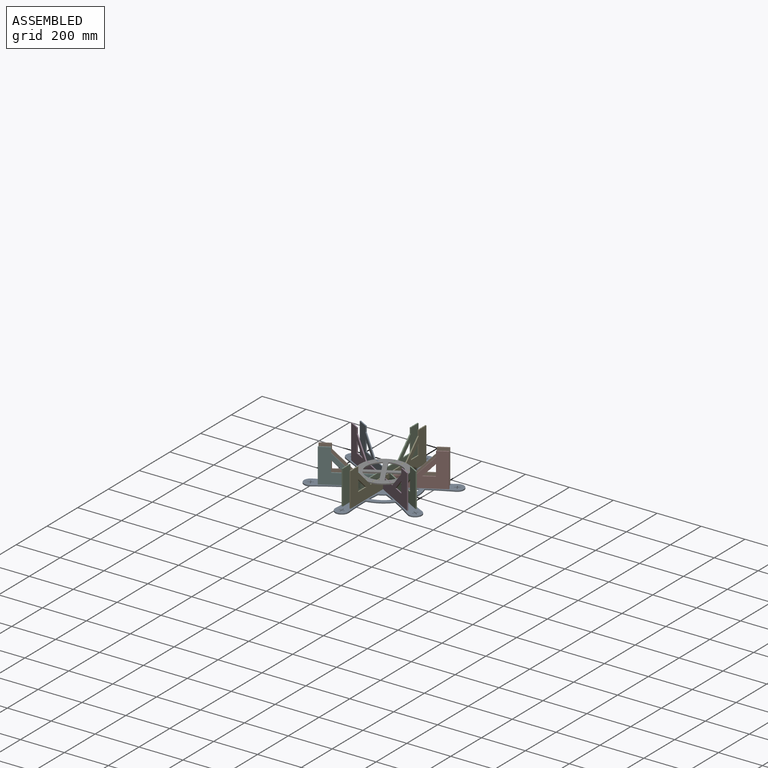
[diagram: assembled view]
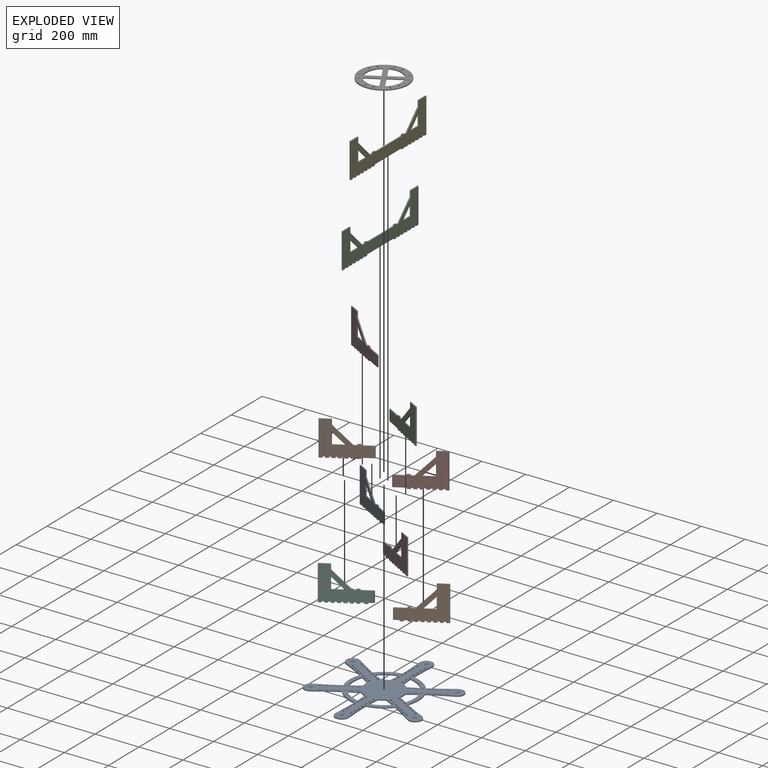
[diagram: exploded view]
GUIDED TOUR — MATED ASSEMBLY (Onshape document 719e027ad515a8deff62a5f3, AutoMate assembly 719e027ad515a8deff62a5f3_9986dfa3a491b61610971efd_74ac65e22d74407ae84c7490_default)

This assembly has 12 components, labeled P0..P11 below (a component is one placed occurrence of a part; the same part can appear more than once), held together by 11 mates. A mate is a constraint between two components; its type names the relative motion it leaves free:
  FASTENED — locks the two components together rigidly (no relative motion).
Axis/direction vectors are unit vectors and 'through' points are millimeter coordinates, both in the assembly's world frame.

MATES
  1. FASTENED "Fastened 4": P8 <-> P0, direction (0.000, 0.000, -1.000) through (-124.55, -152.64, -69.97) mm
  2. FASTENED "Fastened 11": P6 <-> P9, direction (0.000, 0.000, 1.000) through (158.97, -225.14, -9.81) mm
  3. FASTENED "Fastened 1": P4 <-> P0, direction (0.000, 0.000, -1.000) through (97.86, -537.86, -69.97) mm
  4. FASTENED "Fastened 8": P11 <-> P0, direction (0.000, 0.000, -1.000) through (-142.41, -183.58, -69.97) mm
  5. FASTENED "Fastened 2": P2 <-> P0, direction (0.000, 0.000, -1.000) through (62.13, -537.86, -69.97) mm
  6. FASTENED "Fastened 3": P3 <-> P0, direction (0.000, 0.000, -1.000) through (284.54, -430.08, -69.97) mm
  7. FASTENED "Fastened 9": P1 <-> P0, direction (0.000, 0.000, -1.000) through (-142.41, -399.14, -69.97) mm
  8. FASTENED "Fastened 7": P10 <-> P0, direction (0.000, 0.000, -1.000) through (302.40, -399.14, -69.97) mm
  9. FASTENED "Fastened 10": P7 <-> P0, direction (0.000, 0.000, -1.000) through (302.40, -183.58, -69.97) mm
  10. FASTENED "Fastened 5": P5 <-> P0, direction (0.000, 0.000, -1.000) through (-124.55, -430.08, -69.97) mm
  11. FASTENED "Fastened 6": P9 <-> P0, direction (0.000, 0.000, -1.000) through (284.54, -152.64, -69.97) mm

ASSEMBLY ORDER
  1. P7 — the base component [order verified]
  2. P1 [order verified]
  3. P3 [order verified]
  4. P8 [order verified]
  5. P5 [order verified]
  6. P9 [order verified]
  7. P10 [order verified]
  8. P11 [order verified]
  9. P6 [order verified]
  10. P2 [order verified]
  11. P4 [order verified]
  12. P0 [order verified]
(P0, P6 verified with a relaxed clearance tolerance: the source model stores slight part interference there.)
Order-tag legend:
  [order verified] — this step's position reverses a verified removal order: the component was checked to insert without passing through the ones already placed.

Of the 12 components, 11 carry the full construction recipe — the FeatureScript program that regenerates the part's solid from scratch; the rest are supplied as boundary geometry only.
Each toured component is shown spotlighted twice — in the assembled view, then in the exploded view, where a leader line traces a displaced component back to its assembled socket (saturated green if recipe-attached, orange if geometry-only; every other component desaturated gray) — followed by its recipe or geometry summary and the mates that hold it.
NOTE — document 2 of 2 of this assembly tour. The two overview renders and the header above are repeated from document 1; the component sections below continue where the previous document stopped.
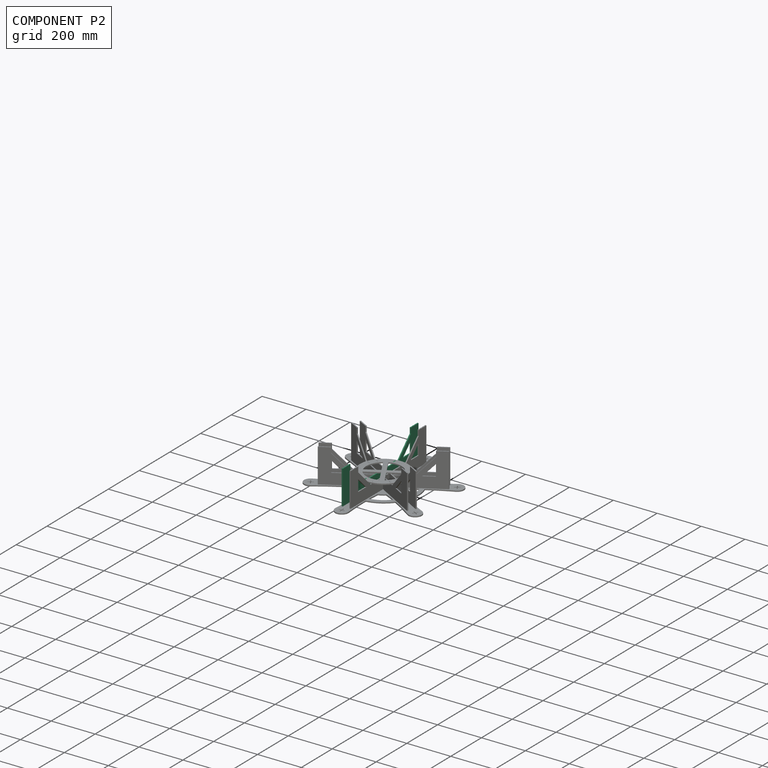
[diagram: component P2 — assembled]
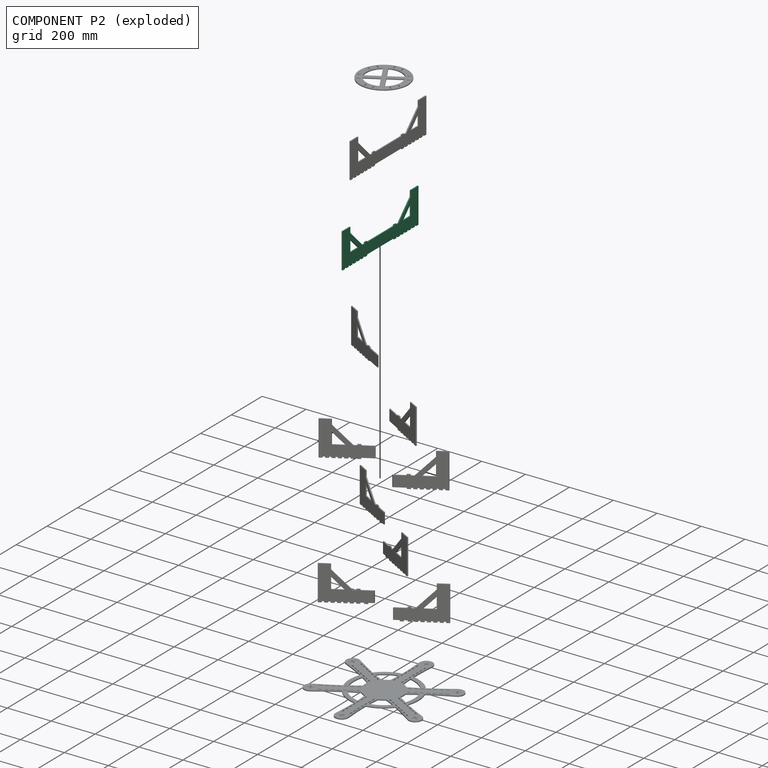
[diagram: component P2 — exploded]
COMPONENT P2 — recipe-attached (CADFS 00227263, mesh-verified: the recipe's output STEP matches this component's geometry to below the mesh-comparison resolution (tessellation chordal tolerance ~0.778 mm)).
Held by: FASTENED mate "Fastened 2" to P0.
Construction recipe (FeatureScript — the CAD program that rebuilds this solid; sketch coordinates are in the units given by the * unit suffixes, e.g. mm):

FeatureScript 1511;
import(path : "onshape/std/geometry.fs", version : "1511.0");
import(path : "onshape/std/common.fs", version : "1511.0");
const mm = millimeter;
const VERTEX = EntityType.VERTEX;
const EDGE = EntityType.EDGE;
const FACE = EntityType.FACE;
const BODY = EntityType.BODY;
function v(x, y){return vector(x, y);}
function OD(order){return orderDisambiguation(order);}
function OSD(set){return originalSetDisambiguation(set);}
function TD(topology){return topologyDisambiguation(topology);}
function TDD(query){return trueDependencyDisambiguation(query);}
function sQuery(a, b, c) {return sketchEntityQuery(a, b, c);}

annotation { "Feature Type Name" : "Feature", "Feature Type Description" : "" }
export const myFeature = defineFeature(function(context is Context, id is Id, definition is map)
    precondition{}
    {
        {
            var Q0;
            Q0=qCreatedBy(makeId("Front.planeOp"),FACE);
            var sketch = newSketch(context, id + "F0", { "sketchPlane" : qUnion([Q0])});
            skLineSegment(sketch, "E0", {"start": v(0, 0) * mm, "end": v(-246.5, 0) * mm});
            skLineSegment(sketch, "E1", {"start": v(-246.5, 0) * mm, "end": v(-246.5, 130) * mm});
            skLineSegment(sketch, "E2", {"start": v(-246.5, 130) * mm, "end": v(-196.5, 130) * mm});
            skLineSegment(sketch, "E3", {"start": v(-196.5, 130) * mm, "end": v(-196.5, 50) * mm});
            skLineSegment(sketch, "E4", {"start": v(-196.5, 50) * mm, "end": v(0, 50) * mm});
            skLineSegment(sketch, "E5", {"start": v(0, 50) * mm, "end": v(0, 0) * mm});
            skLineSegment(sketch, "E6", {"start": v(-196.5, 130) * mm, "end": v(-116.5, 50) * mm});
            skLineSegment(sketch, "E7", {"start": v(-196.5, 101.6) * mm, "end": v(-144.9, 50) * mm});
            skLineSegment(sketch, "E8", {"start": v(-246.5, 0) * mm, "end": v(-246.5, -5.08) * mm});
            skLineSegment(sketch, "E9", {"start": v(-246.5, -5.08) * mm, "end": v(-231.5, -5.08) * mm});
            skLineSegment(sketch, "E10", {"start": v(-231.5, -5.08) * mm, "end": v(-231.5, 0) * mm});
            skLineSegment(sketch, "E11.MirrorCS", {"start": v(196.5, 50) * mm, "end": v(0, 50) * mm});
            skLineSegment(sketch, "E12.MirrorCS", {"start": v(196.5, 130) * mm, "end": v(196.5, 50) * mm});
            skLineSegment(sketch, "E13.MirrorCS", {"start": v(196.5, 130) * mm, "end": v(116.5, 50) * mm});
            skLineSegment(sketch, "E14.MirrorCS", {"start": v(196.5, 101.6) * mm, "end": v(144.9, 50) * mm});
            skLineSegment(sketch, "E15.MirrorCS", {"start": v(246.5, 130) * mm, "end": v(196.5, 130) * mm});
            skLineSegment(sketch, "E16.MirrorCS", {"start": v(0, 0) * mm, "end": v(246.5, 0) * mm});
            skLineSegment(sketch, "E17.MirrorCS", {"start": v(246.5, 0) * mm, "end": v(246.5, 130) * mm});
            skLineSegment(sketch, "E18.1.0.0", {"start": v(-207.5, -5.08) * mm, "end": v(-207.5, 0) * mm});
            skLineSegment(sketch, "E18.1.0.1", {"start": v(-222.5, -5.08) * mm, "end": v(-207.5, -5.08) * mm});
            skLineSegment(sketch, "E18.1.0.2", {"start": v(-222.5, 0) * mm, "end": v(-222.5, -5.08) * mm});
            skLineSegment(sketch, "E18.2.0.0", {"start": v(-183.5, -5.08) * mm, "end": v(-183.5, 0) * mm});
            skLineSegment(sketch, "E18.2.0.1", {"start": v(-198.5, -5.08) * mm, "end": v(-183.5, -5.08) * mm});
            skLineSegment(sketch, "E18.2.0.2", {"start": v(-198.5, 0) * mm, "end": v(-198.5, -5.08) * mm});
            skLineSegment(sketch, "E18.3.0.0", {"start": v(-159.5, -5.08) * mm, "end": v(-159.5, 0) * mm});
            skLineSegment(sketch, "E18.3.0.1", {"start": v(-174.5, -5.08) * mm, "end": v(-159.5, -5.08) * mm});
            skLineSegment(sketch, "E18.3.0.2", {"start": v(-174.5, 0) * mm, "end": v(-174.5, -5.08) * mm});
            skLineSegment(sketch, "E18.4.0.0", {"start": v(-135.5, -5.08) * mm, "end": v(-135.5, 0) * mm});
            skLineSegment(sketch, "E18.4.0.1", {"start": v(-150.5, -5.08) * mm, "end": v(-135.5, -5.08) * mm});
            skLineSegment(sketch, "E18.4.0.2", {"start": v(-150.5, 0) * mm, "end": v(-150.5, -5.08) * mm});
            skLineSegment(sketch, "E18.5.0.0", {"start": v(-111.5, -5.08) * mm, "end": v(-111.5, 0) * mm});
            skLineSegment(sketch, "E18.5.0.1", {"start": v(-126.5, -5.08) * mm, "end": v(-111.5, -5.08) * mm});
            skLineSegment(sketch, "E18.5.0.2", {"start": v(-126.5, 0) * mm, "end": v(-126.5, -5.08) * mm});
            skLineSegment(sketch, "E18.6.0.0", {"start": v(-87.5, -5.08) * mm, "end": v(-87.5, 0) * mm});
            skLineSegment(sketch, "E18.6.0.1", {"start": v(-102.5, -5.08) * mm, "end": v(-87.5, -5.08) * mm});
            skLineSegment(sketch, "E18.6.0.2", {"start": v(-102.5, 0) * mm, "end": v(-102.5, -5.08) * mm});
            skLineSegment(sketch, "E18.direction1", {"start": v(-246.5, -5.08) * mm, "end": v(-222.5, -5.08) * mm, "construction": true});
            skLineSegment(sketch, "E19.MirrorCS", {"start": v(246.5, 0) * mm, "end": v(246.5, -5.08) * mm});
            skLineSegment(sketch, "E20.MirrorCS", {"start": v(231.5, -5.08) * mm, "end": v(231.5, 0) * mm});
            skLineSegment(sketch, "E21.MirrorCS", {"start": v(222.5, 0) * mm, "end": v(222.5, -5.08) * mm});
            skLineSegment(sketch, "E22.MirrorCS", {"start": v(222.5, -5.08) * mm, "end": v(207.5, -5.08) * mm});
            skLineSegment(sketch, "E23.MirrorCS", {"start": v(207.5, -5.08) * mm, "end": v(207.5, 0) * mm});
            skLineSegment(sketch, "E24.MirrorCS", {"start": v(198.5, 0) * mm, "end": v(198.5, -5.08) * mm});
            skLineSegment(sketch, "E25.MirrorCS", {"start": v(198.5, -5.08) * mm, "end": v(183.5, -5.08) * mm});
            skLineSegment(sketch, "E26.MirrorCS", {"start": v(183.5, -5.08) * mm, "end": v(183.5, 0) * mm});
            skLineSegment(sketch, "E27.MirrorCS", {"start": v(174.5, 0) * mm, "end": v(174.5, -5.08) * mm});
            skLineSegment(sketch, "E28.MirrorCS", {"start": v(174.5, -5.08) * mm, "end": v(159.5, -5.08) * mm});
            skLineSegment(sketch, "E29.MirrorCS", {"start": v(159.5, -5.08) * mm, "end": v(159.5, 0) * mm});
            skLineSegment(sketch, "E30.MirrorCS", {"start": v(150.5, 0) * mm, "end": v(150.5, -5.08) * mm});
            skLineSegment(sketch, "E31.MirrorCS", {"start": v(150.5, -5.08) * mm, "end": v(135.5, -5.08) * mm});
            skLineSegment(sketch, "E32.MirrorCS", {"start": v(135.5, -5.08) * mm, "end": v(135.5, 0) * mm});
            skLineSegment(sketch, "E33.MirrorCS", {"start": v(87.5, -5.08) * mm, "end": v(87.5, 0) * mm});
            skLineSegment(sketch, "E34.MirrorCS", {"start": v(102.5, -5.08) * mm, "end": v(87.5, -5.08) * mm});
            skLineSegment(sketch, "E35.MirrorCS", {"start": v(102.5, 0) * mm, "end": v(102.5, -5.08) * mm});
            skLineSegment(sketch, "E36.MirrorCS", {"start": v(111.5, -5.08) * mm, "end": v(111.5, 0) * mm});
            skLineSegment(sketch, "E37.MirrorCS", {"start": v(126.5, 0) * mm, "end": v(126.5, -5.08) * mm});
            skLineSegment(sketch, "E38.MirrorCS", {"start": v(126.5, -5.08) * mm, "end": v(111.5, -5.08) * mm});
            skLineSegment(sketch, "E39", {"start": v(231.5, -5.08) * mm, "end": v(246.5, -5.08) * mm});
            skSolve(sketch);
        }
        {
            var Q0;
            Q0 = qSketchRegion(id + "F0", true);
            extrude(context, id + "F1", {"entities" : qUnion([Q0]), "depth" : 5.08 * mm});
        }
        {
            var Q0;
            Q0=makeQuery(id+"F1.opExtrude","SWEPT_FACE",FACE,{"disambiguationData":[OSD([sQuery(id+"F0.wireOp",EDGE,"E2")])]});
            var Q1;
            Q1=makeQuery(id+"F1.opExtrude","SWEPT_FACE",FACE,{"disambiguationData":[OSD([sQuery(id+"F0.wireOp",EDGE,"E15.MirrorCS")])]});
            extrude(context, id + "F2", {"entities" : qUnion([Q0, Q1]), "operationType" : NewBodyOperationType.ADD, "depth" : 25 * mm});
        }
        {
            var Q0;
            Q0=makeQuery(id+"F1.opExtrude","SWEPT_FACE",FACE,{"disambiguationData":[OSD([sQuery(id+"F0.wireOp",EDGE,"E4"),sQuery(id+"F0.wireOp",EDGE,"E11.MirrorCS")])]});
            var sketch = newSketch(context, id + "F3", { "sketchPlane" : qUnion([Q0])});
            skLineSegment(sketch, "E40.bottom", {"start": v(101.5, -5.08) * mm, "end": v(86.5, -5.08) * mm});
            skLineSegment(sketch, "E40.top", {"start": v(101.5, 0) * mm, "end": v(86.5, 0) * mm});
            skLineSegment(sketch, "E40.right", {"start": v(86.5, -5.08) * mm, "end": v(86.5, 0) * mm});
            skLineSegment(sketch, "E41", {"start": v(101.5, -5.08) * mm, "end": v(101.5, 0) * mm});
            skPoint(sketch, "E40.left.start.orphan", {"position": v(116.5, -5.08) * mm});
            skPoint(sketch, "E42.orphan", {"position": v(116.5, 0) * mm});
            skSolve(sketch);
        }
        {
            var Q0;
            Q0 = qSketchRegion(id + "F3", true);
            extrude(context, id + "F4", {"entities" : qUnion([Q0]), "operationType" : NewBodyOperationType.ADD, "depth" : 5.08 * mm});
        }
        {
            var Q0;
            {var subQ1=sQuery(id+"F0.wireOp",EDGE,"E6");var subQ47=sQuery(id+"F0.wireOp",EDGE,"E11.MirrorCS");var subQ52=sQuery(id+"F0.wireOp",EDGE,"E4");Q0=makeQuery(id+"F4.boolean.opBoolean","SPLIT",FACE,{"disambiguationData":[TD([makeQuery(id+"F1.opExtrude","SWEPT_FACE",FACE,{"disambiguationData":[OSD([subQ1])]})])],"derivedFrom":makeQuery(id+"F1.opExtrude","SWEPT_FACE",FACE,{"disambiguationData":[OSD([subQ52,subQ47])]})});}
            var sketch = newSketch(context, id + "F5", { "sketchPlane" : qUnion([Q0])});
            skLineSegment(sketch, "E43.bottom", {"start": v(-101.5, -5.08) * mm, "end": v(-86.5, -5.08) * mm});
            skLineSegment(sketch, "E43.top", {"start": v(-101.5, 0) * mm, "end": v(-86.5, 0) * mm});
            skLineSegment(sketch, "E43.right", {"start": v(-86.5, -5.08) * mm, "end": v(-86.5, 0) * mm});
            skLineSegment(sketch, "E44", {"start": v(-101.5, -5.08) * mm, "end": v(-101.5, 0) * mm});
            skPoint(sketch, "E43.left.start.orphan", {"position": v(-116.5, -5.08) * mm});
            skPoint(sketch, "E45.orphan", {"position": v(-116.5, 0) * mm});
            skSolve(sketch);
        }
        {
            var Q0;
            Q0 = qSketchRegion(id + "F5", true);
            extrude(context, id + "F6", {"entities" : qUnion([Q0]), "operationType" : NewBodyOperationType.ADD, "depth" : 5.08 * mm});
        }
    });
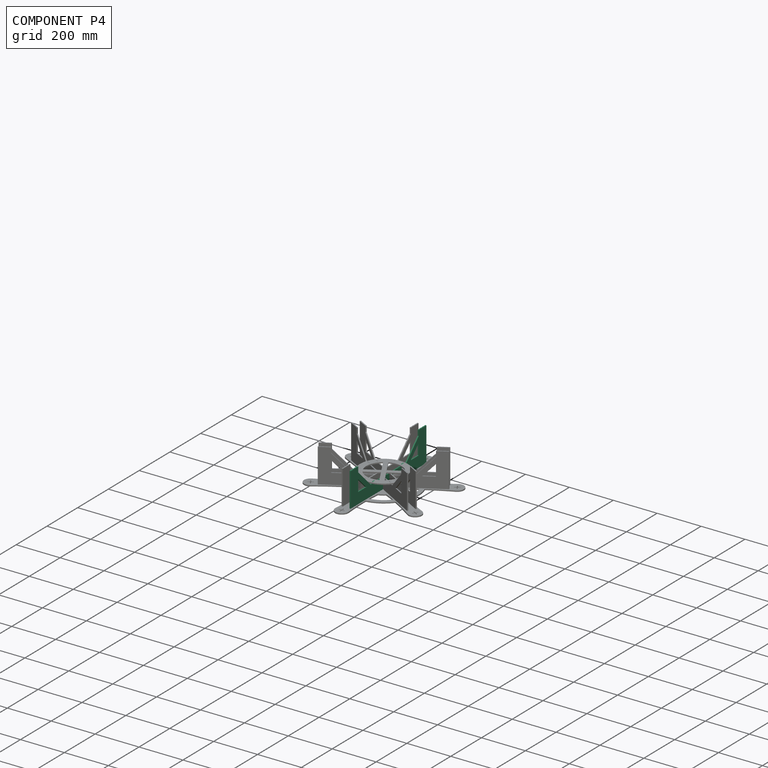
[diagram: component P4 — assembled]
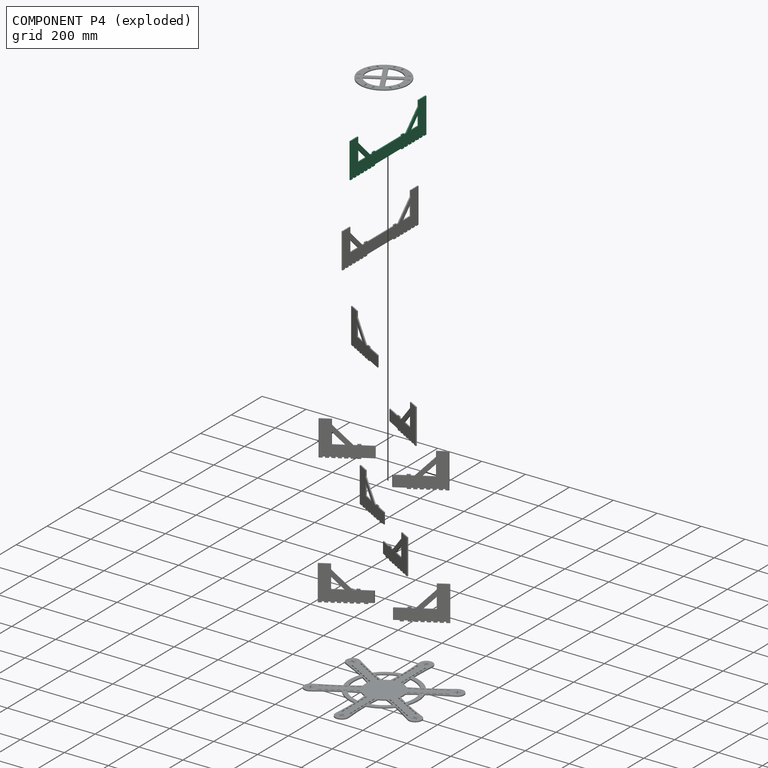
[diagram: component P4 — exploded]
COMPONENT P4 — same part as P2 (CADFS 00227263); its construction recipe is shown at P2.
Held by: FASTENED mate "Fastened 1" to P0.
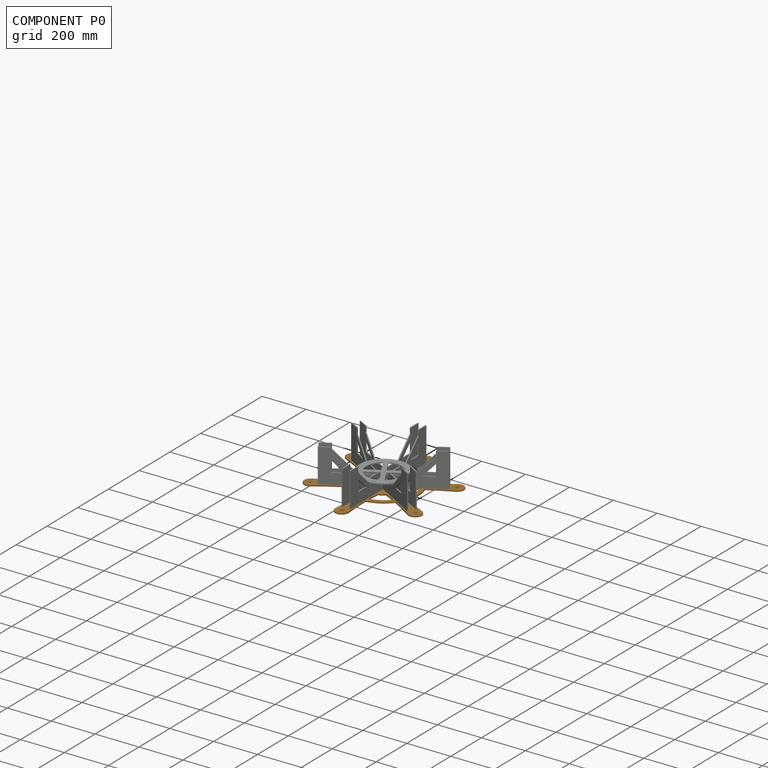
[diagram: component P0 — assembled]
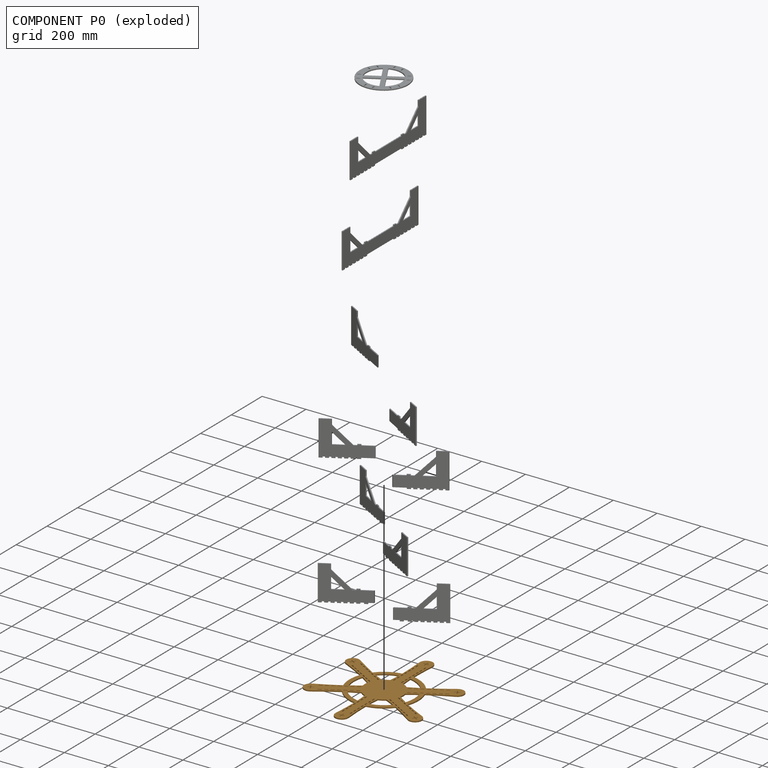
[diagram: component P0 — exploded]
COMPONENT P0 — geometry summary (no construction recipe available for this part):
  bounding box: 610.0 x 536.3 x 5.1 mm
  B-rep topology: 1 solid, 488 faces, 2916 edges
  volume: 499945 mm^3 (30% of its bounding box)
  symmetry: 2-fold rotationally symmetric about the x axis; 2-fold rotationally symmetric about the y axis; 6-fold rotationally symmetric about the z axis; mirror-symmetric across its x mid-plane, y mid-plane, z mid-plane
Held by: FASTENED mate "Fastened 4" to P8; FASTENED mate "Fastened 1" to P4; FASTENED mate "Fastened 8" to P11; FASTENED mate "Fastened 2" to P2; FASTENED mate "Fastened 3" to P3; FASTENED mate "Fastened 9" to P1; FASTENED mate "Fastened 7" to P10; FASTENED mate "Fastened 10" to P7; FASTENED mate "Fastened 5" to P5; FASTENED mate "Fastened 6" to P9.
PROVENANCE & LICENSES
Assembly (occurrences, transforms, mates, per-part STEP geometry): AutoMate dataset, Zenodo record 7776208, CC0.
Construction recipes: CADFS (HuggingFace VladPyatov/CADFS, CC-BY-4.0, layered over the ABC dataset), FeatureScript reconstruction programs keyed by ABC model id.
Join: ABC meta listings map ABC model id -> Onshape documentId; within a shared document, parts are matched by geometric signature (bounding-box dims + volume at 0.1% relative tolerance, exact B-rep face/solid counts).
Verification: 11 of this assembly's 12 components carry a recipe attachment, and every attachment is mesh-verified: the CADFS STEP and the AutoMate member STEP were compared as meshes in their shared local frame (symmetric sampled-point-to-mesh distance); worst across the 11 attachments: below the mesh-comparison resolution (tessellation chordal tolerance ~0.778 mm) on a 518 mm part.
Renders: orthographic iso camera (az 35 / el 25); the floor grid conveys scale (grid pitch printed in each image; no ruler). In the exploded view each component is displaced by its stored offset vector: the offsets alone carry the explosion direction (mate normal/axis signs are not orientation cues and do not encode it), and separation distances are assigned per mate-chain, not proportionally to assembly-order depth.
